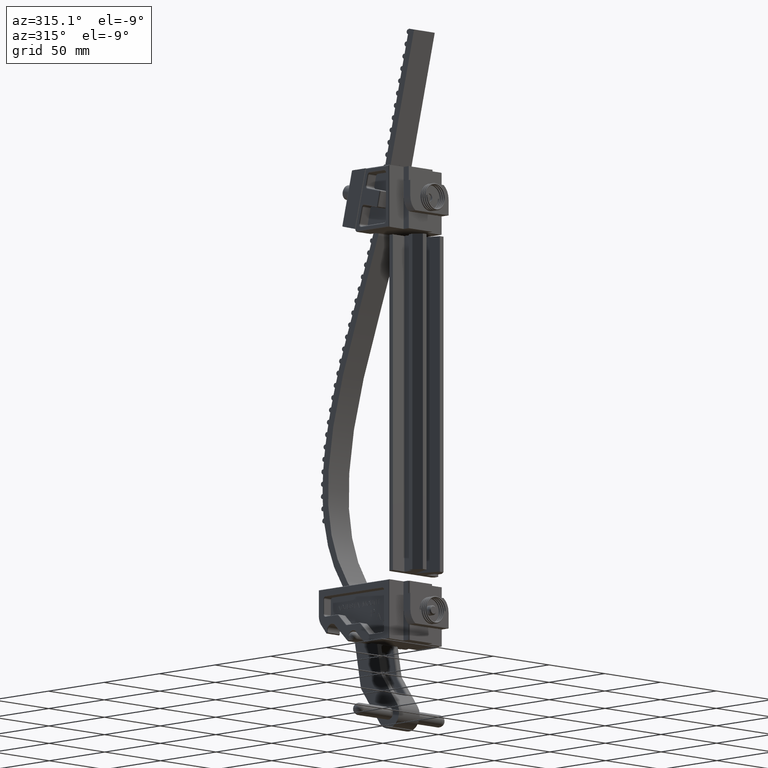
[diagram: clean part render]
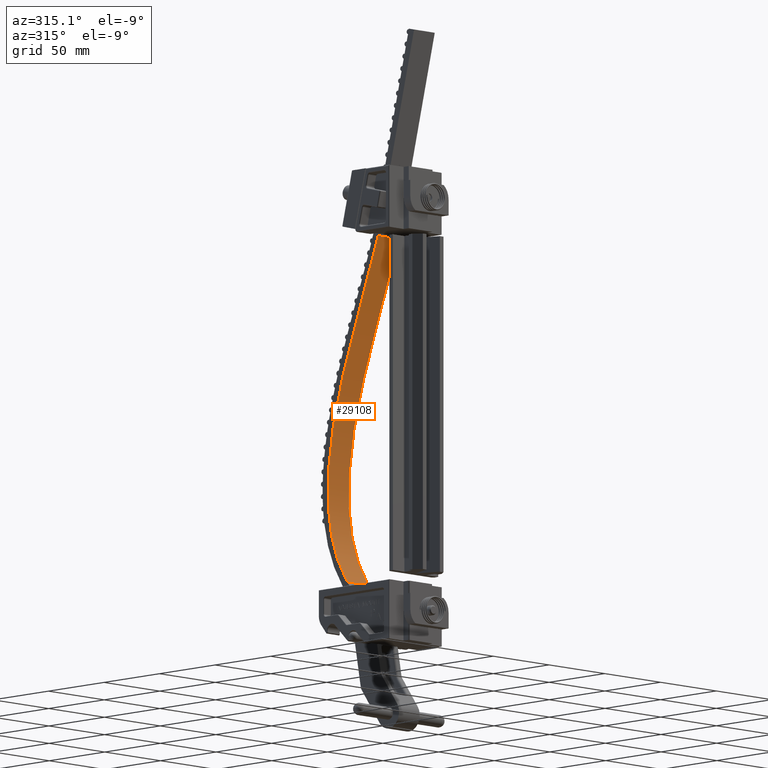
[diagram: same view with one face highlighted and labeled with its STEP entity id]
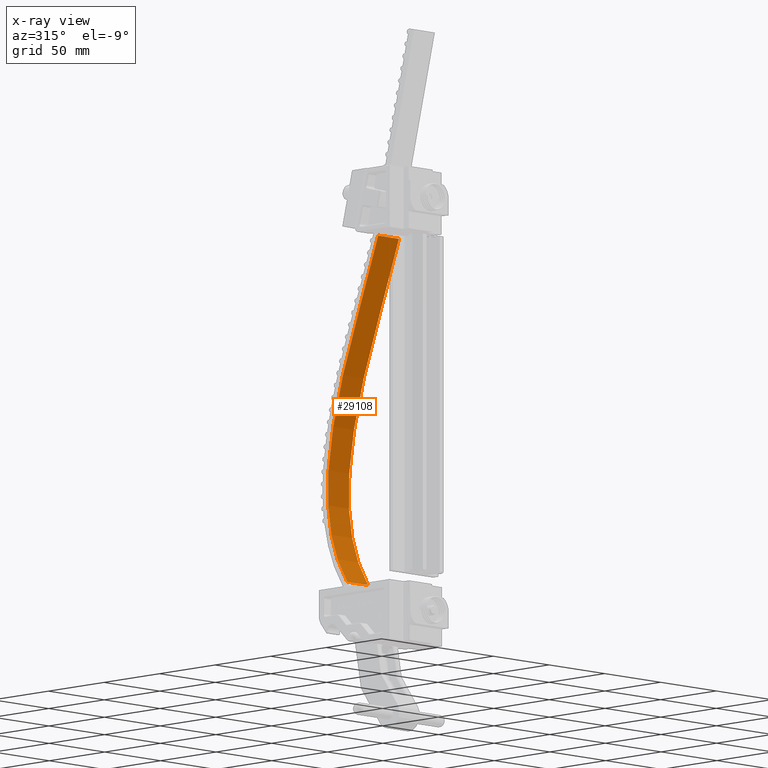
[diagram: x-ray of the same camera — body ghosted, the highlighted face saturated]
A machine part, auxiliary view. The second image highlights one B-rep face of the part: STEP entity #29108.
The next image is the same camera in x-ray: the body ghosted, the highlighted face saturated — about 0% of this face is hidden behind the body in this view.
In plain terms, the highlighted face is a freeform B-spline surface patch.
Its self-contained STEP definition (entity closure, byte-faithful):
#460 = CARTESIAN_POINT ( 'NONE',  ( -9.880162009518699100, -6.300156450696050600, -0.3649999999999982100 ) ) ;
#566 = CARTESIAN_POINT ( 'NONE',  ( -7.559920944890364100, -3.010135854907263700, 0.3649999999999997100 ) ) ;
#695 = CARTESIAN_POINT ( 'NONE',  ( -4.535908555999586900, -0.9069581912141385600, -0.3649999999999983800 ) ) ;
#878 = FACE_OUTER_BOUND ( 'NONE', #10906, .T. ) ;
#1690 = CARTESIAN_POINT ( 'NONE',  ( -9.994861641942650400, -6.461178740847874900, -0.3649999999999997100 ) ) ;
#1808 = CARTESIAN_POINT ( 'NONE',  ( -4.888437122469819800, -1.004784913655332200, -0.3649999999999998800 ) ) ;
#2086 = CARTESIAN_POINT ( 'NONE',  ( -10.12978685184394000, -6.643833961696028500, 0.3649999999999997100 ) ) ;
#2184 = CARTESIAN_POINT ( 'NONE',  ( -6.866969588731146600, -2.276101578689391200, 0.3649999999999997100 ) ) ;
#3070 = CARTESIAN_POINT ( 'NONE',  ( -9.739226280517060600, -6.096476665213411500, -0.3649999999999982100 ) ) ;
#3191 = CARTESIAN_POINT ( 'NONE',  ( -6.866969588731146600, -2.276101578689391200, 0.3649999999999997100 ) ) ;
#3303 = CARTESIAN_POINT ( 'NONE',  ( -4.265379261825017900, -0.8532152870365410400, -0.3649999999999982100 ) ) ;
#3404 = CARTESIAN_POINT ( 'NONE',  ( -10.15233459508219500, -6.673526577965008100, 0.3649999999999997100 ) ) ;
#3473 = CARTESIAN_POINT ( 'NONE',  ( -10.15233459508219500, -6.673526577965008100, 0.3649999999999997100 ) ) ;
#4313 = CARTESIAN_POINT ( 'NONE',  ( -9.739226280517060600, -6.096476665213411500, -0.3649999999999997100 ) ) ;
#4433 = CARTESIAN_POINT ( 'NONE',  ( -4.265379261825017900, -0.8532152870365410400, -0.3649999999999997100 ) ) ;
#4800 = CARTESIAN_POINT ( 'NONE',  ( -5.803480530605789100, -1.443217244329021900, 0.3649999999999997100 ) ) ;
#5670 = CARTESIAN_POINT ( 'NONE',  ( -9.546888330919413700, -5.812740987898034300, -0.3649999999999982100 ) ) ;
#5771 = CARTESIAN_POINT ( 'NONE',  ( -6.271242221683551500, -1.771487624412882100, 0.3649999999999997100 ) ) ;
#5888 = CARTESIAN_POINT ( 'NONE',  ( -4.034381279761635000, -0.8256254983031654500, -0.3649999999999982100 ) ) ;
#6248 = LINE ( 'NONE', #24403, #26941 ) ;
#6830 = EDGE_CURVE ( 'NONE', #13390, #16005, #20823, .T. ) ;
#6919 = CARTESIAN_POINT ( 'NONE',  ( -9.297580404828741200, -5.437849594087092300, -0.3649999999999996000 ) ) ;
#6958 = LINE ( 'NONE', #3404, #26832 ) ;
#7025 = CARTESIAN_POINT ( 'NONE',  ( -3.846420375839335800, -0.8144022982885350500, -0.3649999999999997100 ) ) ;
#7309 = CARTESIAN_POINT ( 'NONE',  ( -9.994861641942650400, -6.461178740847874900, 0.3649999999999997100 ) ) ;
#7413 = CARTESIAN_POINT ( 'NONE',  ( -4.888437122469819800, -1.004784913655332200, 0.3649999999999996000 ) ) ;
#8069 = CARTESIAN_POINT ( 'NONE',  ( -10.15233459508219500, -6.673526577965008100, 0.3649999999999997100 ) ) ;
#8172 = CARTESIAN_POINT ( 'NONE',  ( -10.12978685184394000, -6.643833961696028500, 0.3649999999999997100 ) ) ;
#8276 = CARTESIAN_POINT ( 'NONE',  ( -9.297580404828741200, -5.437849594087092300, -0.3649999999999981000 ) ) ;
#8398 = CARTESIAN_POINT ( 'NONE',  ( -5.803480530605789100, -1.443217244329021900, 0.3649999999999997100 ) ) ;
#8518 = CARTESIAN_POINT ( 'NONE',  ( -3.846420375839335800, -0.8144022982885350500, -0.3649999999999982100 ) ) ;
#9522 = CARTESIAN_POINT ( 'NONE',  ( -8.651796437527972100, -4.477138082325651200, -0.3649999999999998800 ) ) ;
#9646 = CARTESIAN_POINT ( 'NONE',  ( -3.703076168339255200, -0.8125000000000001100, -0.3649999999999998800 ) ) ;
#9909 = CARTESIAN_POINT ( 'NONE',  ( -9.739226280517060600, -6.096476665213411500, 0.3649999999999997100 ) ) ;
#10036 = CARTESIAN_POINT ( 'NONE',  ( -4.265379261825017900, -0.8532152870365410400, 0.3649999999999997100 ) ) ;
#10781 = CARTESIAN_POINT ( 'NONE',  ( -10.08545924063925400, -6.584714552806615600, 0.3649999999999997100 ) ) ;
#10903 = CARTESIAN_POINT ( 'NONE',  ( -8.982958729222373200, -4.964622519869943000, -0.3649999999999982100 ) ) ;
#10906 = EDGE_LOOP ( 'NONE', ( #26872, #26528, #19826, #13276 ) ) ;
#11004 = CARTESIAN_POINT ( 'NONE',  ( -5.314377462977397200, -1.173694151920279500, 0.3649999999999997100 ) ) ;
#11109 = CARTESIAN_POINT ( 'NONE',  ( -3.750723905860037500, -0.8125000000000001100, -0.3649999999999983800 ) ) ;
#11454 = DIRECTION ( 'NONE',  ( 3.081487911019580100E-032, -5.238529448733285900E-032, -1.000000000000000000 ) ) ;
#12143 = CARTESIAN_POINT ( 'NONE',  ( -7.559920944890364100, -3.010135854907263700, -0.3649999999999997100 ) ) ;
#12517 = CARTESIAN_POINT ( 'NONE',  ( -9.297580404828741200, -5.437849594087092300, 0.3649999999999998800 ) ) ;
#12627 = CARTESIAN_POINT ( 'NONE',  ( -3.846420375839335800, -0.8144022982885350500, 0.3649999999999997100 ) ) ;
#13276 = ORIENTED_EDGE ( 'NONE', *, *, #29121, .T. ) ;
#13377 = CARTESIAN_POINT ( 'NONE',  ( -9.994861641942650400, -6.461178740847874900, 0.3649999999999997100 ) ) ;
#13390 = VERTEX_POINT ( 'NONE', #30443 ) ;
#13493 = CARTESIAN_POINT ( 'NONE',  ( -8.651796437527972100, -4.477138082325651200, -0.3649999999999983800 ) ) ;
#13600 = CARTESIAN_POINT ( 'NONE',  ( -4.888437122469819800, -1.004784913655332200, 0.3649999999999996000 ) ) ;
#13727 = CARTESIAN_POINT ( 'NONE',  ( -3.703076168339255200, -0.8125000000000001100, -0.3649999999999983800 ) ) ;
#14292 = B_SPLINE_SURFACE_WITH_KNOTS ( 'NONE', 3, 1, ( 
 ( #8069, #28773 ),
 ( #8172, #26311 ),
 ( #10781, #28880 ),
 ( #13377, #31461 ),
 ( #16000, #460 ),
 ( #18623, #3070 ),
 ( #21205, #5670 ),
 ( #23826, #8276 ),
 ( #26417, #10903 ),
 ( #28988, #13493 ),
 ( #31575, #16127 ),
 ( #566, #18735 ),
 ( #3191, #21320 ),
 ( #5771, #23941 ),
 ( #8398, #26519 ),
 ( #11004, #29118 ),
 ( #13600, #31685 ),
 ( #16239, #695 ),
 ( #18843, #3303 ),
 ( #21440, #5888 ),
 ( #24056, #8518 ),
 ( #26648, #11109 ),
 ( #29225, #13727 ) ),
 .UNSPECIFIED., .F., .F., .F.,
 ( 4, 1, 1, 1, 1, 1, 1, 1, 1, 1, 1, 1, 1, 1, 1, 1, 1, 1, 1, 1, 4 ),
 ( 2, 2 ),
 ( 0.0000000000000000000, 0.01562500000000000000, 0.03125000000000000000, 0.06250000000000000000, 0.09375000000000000000, 0.1250000000000000000, 0.1875000000000000000, 0.2500000000000000000, 0.3125000000000000000, 0.3750000000000000000, 0.5000000000000000000, 0.6250000000000000000, 0.6875000000000000000, 0.7500000000000000000, 0.8125000000000000000, 0.8750000000000000000, 0.9062500000000000000, 0.9375000000000000000, 0.9687500000000000000, 0.9843750000000000000, 1.000000000000000000 ),
 ( 0.0000000000000000000, 1.000000000000000000 ),
 .UNSPECIFIED. ) ;
#14652 = CARTESIAN_POINT ( 'NONE',  ( -10.12978685184394000, -6.643833961696028500, -0.3649999999999997100 ) ) ;
#14758 = CARTESIAN_POINT ( 'NONE',  ( -6.271242221683551500, -1.771487624412882100, -0.3649999999999997100 ) ) ;
#15143 = CARTESIAN_POINT ( 'NONE',  ( -8.651796437527972100, -4.477138082325651200, 0.3649999999999996000 ) ) ;
#15254 = CARTESIAN_POINT ( 'NONE',  ( -3.703076168339255200, -0.8125000000000001100, 0.3649999999999996000 ) ) ;
#16000 = CARTESIAN_POINT ( 'NONE',  ( -9.880162009518699100, -6.300156450696050600, 0.3649999999999997100 ) ) ;
#16005 = VERTEX_POINT ( 'NONE', #17911 ) ;
#16127 = CARTESIAN_POINT ( 'NONE',  ( -8.186926588340684300, -3.820439033941906500, -0.3649999999999982100 ) ) ;
#16239 = CARTESIAN_POINT ( 'NONE',  ( -4.535908555999586900, -0.9069581912141385600, 0.3649999999999996000 ) ) ;
#16286 = VERTEX_POINT ( 'NONE', #3473 ) ;
#17249 = CARTESIAN_POINT ( 'NONE',  ( -10.08545924063925400, -6.584714552806615600, -0.3649999999999997100 ) ) ;
#17371 = CARTESIAN_POINT ( 'NONE',  ( -5.314377462977397200, -1.173694151920279500, -0.3649999999999997100 ) ) ;
#17739 = CARTESIAN_POINT ( 'NONE',  ( -7.559920944890364100, -3.010135854907263700, 0.3649999999999997100 ) ) ;
#17911 = CARTESIAN_POINT ( 'NONE',  ( -3.703076168339255200, -0.8125000000000001100, -0.3649999999999998800 ) ) ;
#18623 = CARTESIAN_POINT ( 'NONE',  ( -9.739226280517060600, -6.096476665213411500, 0.3649999999999997100 ) ) ;
#18735 = CARTESIAN_POINT ( 'NONE',  ( -7.559920944890364100, -3.010135854907263700, -0.3649999999999982100 ) ) ;
#18843 = CARTESIAN_POINT ( 'NONE',  ( -4.265379261825017900, -0.8532152870365410400, 0.3649999999999997100 ) ) ;
#19826 = ORIENTED_EDGE ( 'NONE', *, *, #26186, .F. ) ;
#19852 = CARTESIAN_POINT ( 'NONE',  ( -9.880162009518699100, -6.300156450696050600, -0.3649999999999997100 ) ) ;
#19952 = CARTESIAN_POINT ( 'NONE',  ( -4.535908555999586900, -0.9069581912141385600, -0.3649999999999998800 ) ) ;
#20231 = CARTESIAN_POINT ( 'NONE',  ( -10.15233459508219500, -6.673526577965008100, 0.3649999999999997100 ) ) ;
#20339 = CARTESIAN_POINT ( 'NONE',  ( -6.271242221683551500, -1.771487624412882100, 0.3649999999999997100 ) ) ;
#20823 = B_SPLINE_CURVE_WITH_KNOTS ( 'NONE', 3,
 ( #32697, #14652, #17249, #1690, #19852, #4313, #22458, #6919, #25069, #9522, #27656, #12143, #30226, #14758, #32817, #17371, #1808, #19952, #4433, #22577, #7025, #25182, #9646 ),
 .UNSPECIFIED., .F., .F.,
 ( 4, 1, 1, 1, 1, 1, 1, 1, 1, 1, 1, 1, 1, 1, 1, 1, 1, 1, 1, 1, 4 ),
 ( 0.0000000000000000000, 0.01562500000000000000, 0.03125000000000000000, 0.06250000000000000000, 0.09375000000000000000, 0.1250000000000000000, 0.1875000000000000000, 0.2500000000000000000, 0.3125000000000000000, 0.3750000000000000000, 0.5000000000000000000, 0.6250000000000000000, 0.6875000000000000000, 0.7500000000000000000, 0.8125000000000000000, 0.8750000000000000000, 0.9062500000000000000, 0.9375000000000000000, 0.9687500000000000000, 0.9843750000000000000, 1.000000000000000000 ),
 .UNSPECIFIED. ) ;
#21205 = CARTESIAN_POINT ( 'NONE',  ( -9.546888330919413700, -5.812740987898034300, 0.3649999999999997100 ) ) ;
#21320 = CARTESIAN_POINT ( 'NONE',  ( -6.866969588731146600, -2.276101578689391200, -0.3649999999999982100 ) ) ;
#21389 = EDGE_CURVE ( 'NONE', #30233, #16005, #6248, .T. ) ;
#21440 = CARTESIAN_POINT ( 'NONE',  ( -4.034381279761635000, -0.8256254983031654500, 0.3649999999999997100 ) ) ;
#22458 = CARTESIAN_POINT ( 'NONE',  ( -9.546888330919413700, -5.812740987898034300, -0.3649999999999997100 ) ) ;
#22577 = CARTESIAN_POINT ( 'NONE',  ( -4.034381279761635000, -0.8256254983031654500, -0.3649999999999997100 ) ) ;
#22852 = CARTESIAN_POINT ( 'NONE',  ( -10.08545924063925400, -6.584714552806615600, 0.3649999999999997100 ) ) ;
#22972 = CARTESIAN_POINT ( 'NONE',  ( -5.314377462977397200, -1.173694151920279500, 0.3649999999999997100 ) ) ;
#23826 = CARTESIAN_POINT ( 'NONE',  ( -9.297580404828741200, -5.437849594087092300, 0.3649999999999998800 ) ) ;
#23941 = CARTESIAN_POINT ( 'NONE',  ( -6.271242221683551500, -1.771487624412882100, -0.3649999999999982100 ) ) ;
#24019 = B_SPLINE_CURVE_WITH_KNOTS ( 'NONE', 3,
 ( #20231, #2086, #22852, #7309, #25435, #9909, #28027, #12517, #30600, #15143, #33199, #17739, #2184, #20339, #4800, #22972, #7413, #25541, #10036, #28128, #12627, #30711, #15254 ),
 .UNSPECIFIED., .F., .F.,
 ( 4, 1, 1, 1, 1, 1, 1, 1, 1, 1, 1, 1, 1, 1, 1, 1, 1, 1, 1, 1, 4 ),
 ( 0.0000000000000000000, 0.01562500000000000000, 0.03125000000000000000, 0.06250000000000000000, 0.09375000000000000000, 0.1250000000000000000, 0.1875000000000000000, 0.2500000000000000000, 0.3125000000000000000, 0.3750000000000000000, 0.5000000000000000000, 0.6250000000000000000, 0.6875000000000000000, 0.7500000000000000000, 0.8125000000000000000, 0.8750000000000000000, 0.9062500000000000000, 0.9375000000000000000, 0.9687500000000000000, 0.9843750000000000000, 1.000000000000000000 ),
 .UNSPECIFIED. ) ;
#24056 = CARTESIAN_POINT ( 'NONE',  ( -3.846420375839335800, -0.8144022982885350500, 0.3649999999999997100 ) ) ;
#24170 = DIRECTION ( 'NONE',  ( 3.081487911019580100E-032, -5.238529448733285900E-032, -1.000000000000000000 ) ) ;
#24403 = CARTESIAN_POINT ( 'NONE',  ( -3.703076168339255200, -0.8125000000000001100, 0.3649999999999996000 ) ) ;
#25069 = CARTESIAN_POINT ( 'NONE',  ( -8.982958729222373200, -4.964622519869943000, -0.3649999999999997100 ) ) ;
#25182 = CARTESIAN_POINT ( 'NONE',  ( -3.750723905860037500, -0.8125000000000001100, -0.3649999999999998800 ) ) ;
#25435 = CARTESIAN_POINT ( 'NONE',  ( -9.880162009518699100, -6.300156450696050600, 0.3649999999999997100 ) ) ;
#25541 = CARTESIAN_POINT ( 'NONE',  ( -4.535908555999586900, -0.9069581912141385600, 0.3649999999999996000 ) ) ;
#26186 = EDGE_CURVE ( 'NONE', #16286, #30233, #24019, .T. ) ;
#26311 = CARTESIAN_POINT ( 'NONE',  ( -10.12978685184394000, -6.643833961696028500, -0.3649999999999982100 ) ) ;
#26417 = CARTESIAN_POINT ( 'NONE',  ( -8.982958729222373200, -4.964622519869943000, 0.3649999999999997100 ) ) ;
#26519 = CARTESIAN_POINT ( 'NONE',  ( -5.803480530605789100, -1.443217244329021900, -0.3649999999999982100 ) ) ;
#26528 = ORIENTED_EDGE ( 'NONE', *, *, #21389, .F. ) ;
#26648 = CARTESIAN_POINT ( 'NONE',  ( -3.750723905860037500, -0.8125000000000001100, 0.3649999999999996000 ) ) ;
#26832 = VECTOR ( 'NONE', #24170, 39.37007874015748100 ) ;
#26872 = ORIENTED_EDGE ( 'NONE', *, *, #6830, .T. ) ;
#26941 = VECTOR ( 'NONE', #11454, 39.37007874015748100 ) ;
#27234 = CARTESIAN_POINT ( 'NONE',  ( -3.703076168339255200, -0.8125000000000001100, 0.3649999999999996000 ) ) ;
#27656 = CARTESIAN_POINT ( 'NONE',  ( -8.186926588340684300, -3.820439033941906500, -0.3649999999999997100 ) ) ;
#28027 = CARTESIAN_POINT ( 'NONE',  ( -9.546888330919413700, -5.812740987898034300, 0.3649999999999997100 ) ) ;
#28128 = CARTESIAN_POINT ( 'NONE',  ( -4.034381279761635000, -0.8256254983031654500, 0.3649999999999997100 ) ) ;
#28773 = CARTESIAN_POINT ( 'NONE',  ( -10.15233459508219500, -6.673526577965008100, -0.3649999999999982100 ) ) ;
#28880 = CARTESIAN_POINT ( 'NONE',  ( -10.08545924063925400, -6.584714552806615600, -0.3649999999999982100 ) ) ;
#28988 = CARTESIAN_POINT ( 'NONE',  ( -8.651796437527972100, -4.477138082325651200, 0.3649999999999996000 ) ) ;
#29108 = ADVANCED_FACE ( 'NONE', ( #878 ), #14292, .F. ) ;
#29118 = CARTESIAN_POINT ( 'NONE',  ( -5.314377462977397200, -1.173694151920279500, -0.3649999999999982100 ) ) ;
#29121 = EDGE_CURVE ( 'NONE', #16286, #13390, #6958, .T. ) ;
#29225 = CARTESIAN_POINT ( 'NONE',  ( -3.703076168339255200, -0.8125000000000001100, 0.3649999999999996000 ) ) ;
#30226 = CARTESIAN_POINT ( 'NONE',  ( -6.866969588731146600, -2.276101578689391200, -0.3649999999999997100 ) ) ;
#30233 = VERTEX_POINT ( 'NONE', #27234 ) ;
#30443 = CARTESIAN_POINT ( 'NONE',  ( -10.15233459508219500, -6.673526577965008100, -0.3649999999999997100 ) ) ;
#30600 = CARTESIAN_POINT ( 'NONE',  ( -8.982958729222373200, -4.964622519869943000, 0.3649999999999997100 ) ) ;
#30711 = CARTESIAN_POINT ( 'NONE',  ( -3.750723905860037500, -0.8125000000000001100, 0.3649999999999996000 ) ) ;
#31461 = CARTESIAN_POINT ( 'NONE',  ( -9.994861641942650400, -6.461178740847874900, -0.3649999999999982100 ) ) ;
#31575 = CARTESIAN_POINT ( 'NONE',  ( -8.186926588340684300, -3.820439033941906500, 0.3649999999999997100 ) ) ;
#31685 = CARTESIAN_POINT ( 'NONE',  ( -4.888437122469819800, -1.004784913655332200, -0.3649999999999983800 ) ) ;
#32697 = CARTESIAN_POINT ( 'NONE',  ( -10.15233459508219500, -6.673526577965008100, -0.3649999999999997100 ) ) ;
#32817 = CARTESIAN_POINT ( 'NONE',  ( -5.803480530605789100, -1.443217244329021900, -0.3649999999999997100 ) ) ;
#33199 = CARTESIAN_POINT ( 'NONE',  ( -8.186926588340684300, -3.820439033941906500, 0.3649999999999997100 ) ) ;